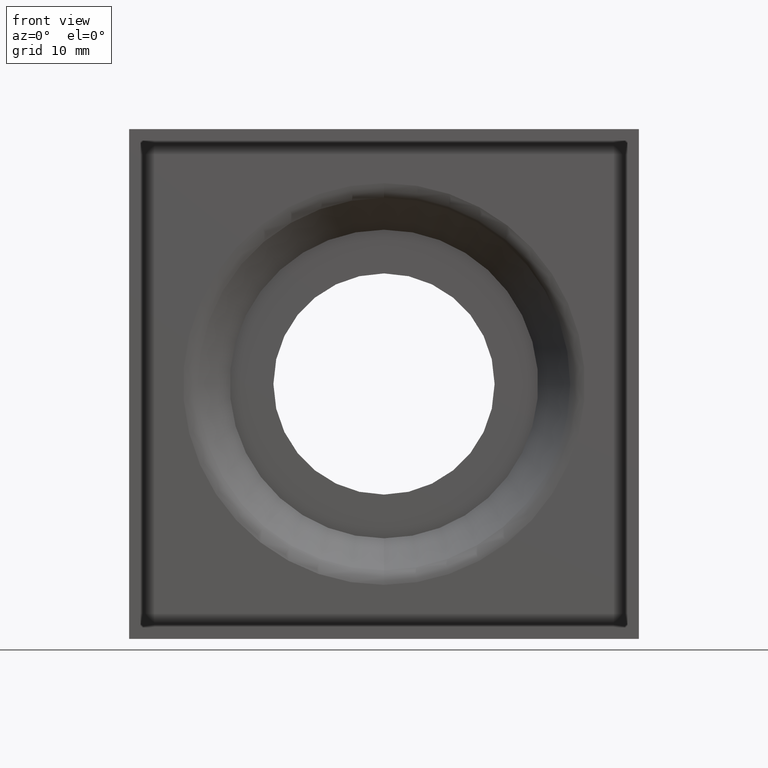
[diagram: clean part render]
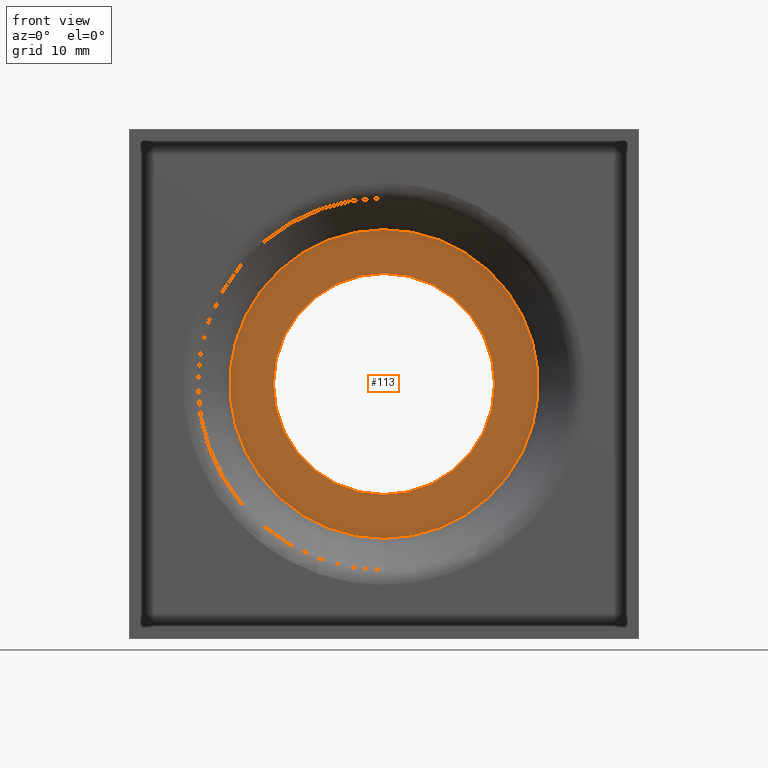
[diagram: same view with one face highlighted and labeled with its STEP entity id]
A machine part, front view. The second image highlights one B-rep face of the part: STEP entity #113.
In plain terms, the highlighted planar face has unit normal (0, 1, 0).
Its self-contained STEP definition (entity closure, byte-faithful):
#7 = EDGE_CURVE ( 'NONE', #741, #245, #763, .T. ) ;
#26 = CARTESIAN_POINT ( 'NONE',  ( 0.0000000000000000000, 11.79999999999999900, 0.0000000000000000000 ) ) ;
#32 = DIRECTION ( 'NONE',  ( 0.0000000000000000000, 0.0000000000000000000, 1.000000000000000000 ) ) ;
#68 = VERTEX_POINT ( 'NONE', #179 ) ;
#92 = CIRCLE ( 'NONE', #119, 11.65000000000000000 ) ;
#113 = ADVANCED_FACE ( 'NONE', ( #199, #137 ), #503, .F. ) ;
#119 = AXIS2_PLACEMENT_3D ( 'NONE', #653, #148, #338 ) ;
#137 = FACE_OUTER_BOUND ( 'NONE', #185, .T. ) ;
#145 = EDGE_CURVE ( 'NONE', #444, #68, #812, .T. ) ;
#147 = CIRCLE ( 'NONE', #565, 16.25294372515227800 ) ;
#148 = DIRECTION ( 'NONE',  ( 0.0000000000000000000, 1.000000000000000000, 0.0000000000000000000 ) ) ;
#174 = DIRECTION ( 'NONE',  ( 0.0000000000000000000, 0.0000000000000000000, 1.000000000000000000 ) ) ;
#179 = CARTESIAN_POINT ( 'NONE',  ( 1.426713521006666200E-015, 11.79999999999999900, -11.65000000000000000 ) ) ;
#185 = EDGE_LOOP ( 'NONE', ( #291, #315 ) ) ;
#199 = FACE_BOUND ( 'NONE', #807, .T. ) ;
#234 = DIRECTION ( 'NONE',  ( 0.0000000000000000000, 0.0000000000000000000, 1.000000000000000000 ) ) ;
#245 = VERTEX_POINT ( 'NONE', #257 ) ;
#253 = DIRECTION ( 'NONE',  ( 0.0000000000000000000, -0.0000000000000000000, 1.000000000000000000 ) ) ;
#257 = CARTESIAN_POINT ( 'NONE',  ( 0.0000000000000000000, 11.79999999999999900, 16.25294372515227800 ) ) ;
#291 = ORIENTED_EDGE ( 'NONE', *, *, #558, .F. ) ;
#295 = DIRECTION ( 'NONE',  ( 0.0000000000000000000, 1.000000000000000000, 0.0000000000000000000 ) ) ;
#298 = CARTESIAN_POINT ( 'NONE',  ( 0.0000000000000000000, 11.79999999999999900, 0.0000000000000000000 ) ) ;
#307 = AXIS2_PLACEMENT_3D ( 'NONE', #26, #734, #32 ) ;
#315 = ORIENTED_EDGE ( 'NONE', *, *, #7, .F. ) ;
#331 = ORIENTED_EDGE ( 'NONE', *, *, #145, .T. ) ;
#338 = DIRECTION ( 'NONE',  ( 0.0000000000000000000, 0.0000000000000000000, 1.000000000000000000 ) ) ;
#364 = DIRECTION ( 'NONE',  ( 0.0000000000000000000, 1.000000000000000000, 0.0000000000000000000 ) ) ;
#444 = VERTEX_POINT ( 'NONE', #615 ) ;
#490 = CARTESIAN_POINT ( 'NONE',  ( 0.0000000000000000000, 11.79999999999999900, 0.0000000000000000000 ) ) ;
#503 = PLANE ( 'NONE',  #694 ) ;
#558 = EDGE_CURVE ( 'NONE', #245, #741, #147, .T. ) ;
#565 = AXIS2_PLACEMENT_3D ( 'NONE', #298, #364, #174 ) ;
#615 = CARTESIAN_POINT ( 'NONE',  ( 0.0000000000000000000, 11.79999999999999900, 11.65000000000000000 ) ) ;
#622 = CARTESIAN_POINT ( 'NONE',  ( 0.0000000000000000000, 11.79999999999999900, 0.0000000000000000000 ) ) ;
#653 = CARTESIAN_POINT ( 'NONE',  ( 0.0000000000000000000, 11.79999999999999900, 0.0000000000000000000 ) ) ;
#671 = EDGE_CURVE ( 'NONE', #68, #444, #92, .T. ) ;
#685 = AXIS2_PLACEMENT_3D ( 'NONE', #490, #295, #234 ) ;
#694 = AXIS2_PLACEMENT_3D ( 'NONE', #622, #823, #253 ) ;
#734 = DIRECTION ( 'NONE',  ( 0.0000000000000000000, 1.000000000000000000, 0.0000000000000000000 ) ) ;
#739 = ORIENTED_EDGE ( 'NONE', *, *, #671, .T. ) ;
#741 = VERTEX_POINT ( 'NONE', #788 ) ;
#763 = CIRCLE ( 'NONE', #685, 16.25294372515227800 ) ;
#788 = CARTESIAN_POINT ( 'NONE',  ( -2.195884929082146100E-015, 11.79999999999999900, -16.25294372515227800 ) ) ;
#807 = EDGE_LOOP ( 'NONE', ( #331, #739 ) ) ;
#812 = CIRCLE ( 'NONE', #307, 11.65000000000000000 ) ;
#823 = DIRECTION ( 'NONE',  ( 0.0000000000000000000, 1.000000000000000000, 0.0000000000000000000 ) ) ;